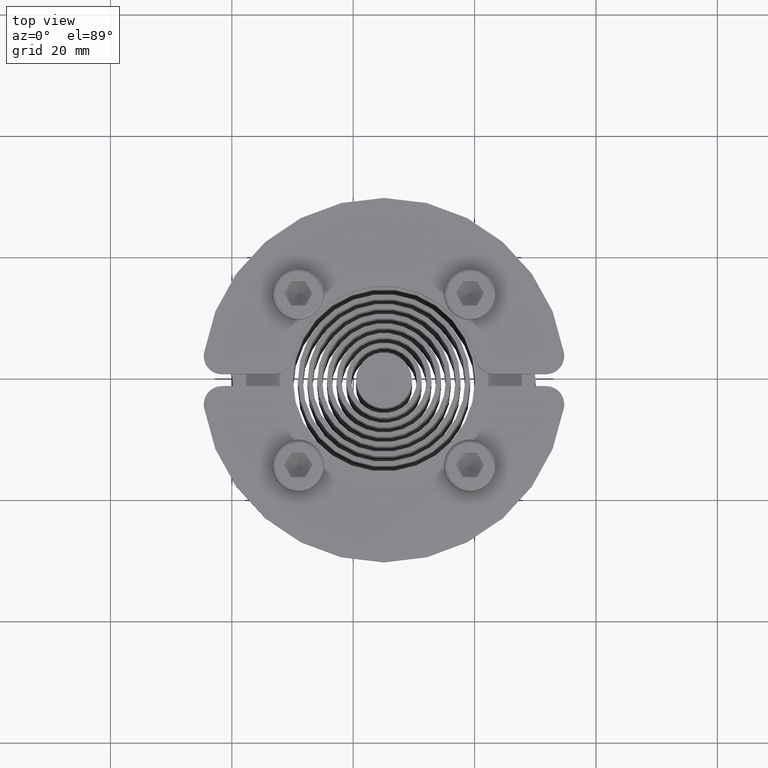
[diagram: clean part render]
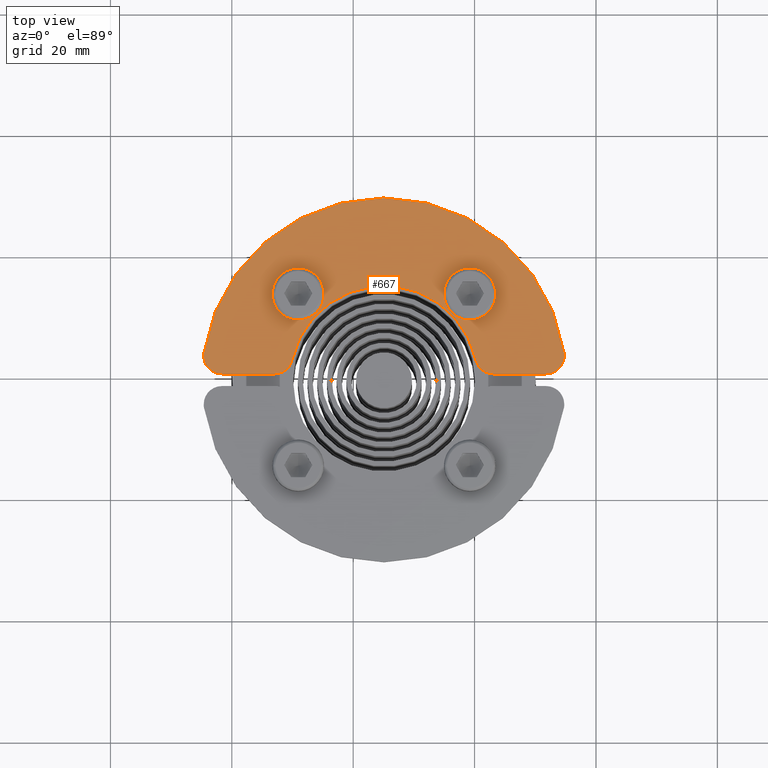
[diagram: same view with one face highlighted and labeled with its STEP entity id]
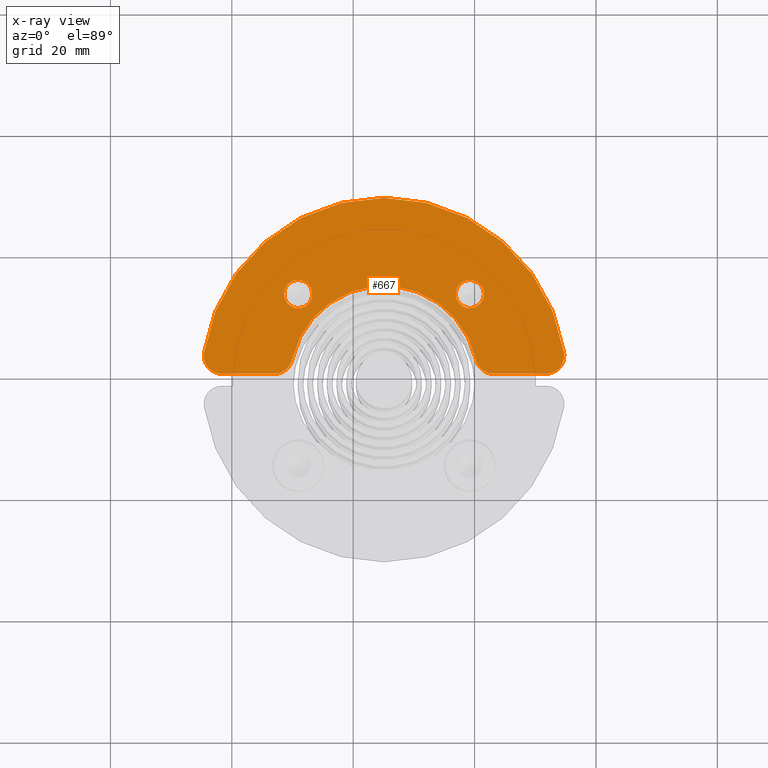
[diagram: x-ray of the same camera — body ghosted, the highlighted face saturated]
A machine part, top view. The second image highlights one B-rep face of the part: STEP entity #667.
The next image is the same camera in x-ray: the body ghosted, the highlighted face saturated — about 0% of this face is hidden behind the body in this view.
In plain terms, the highlighted planar face has unit normal (0, 0, -1).
Its self-contained STEP definition (entity closure, byte-faithful):
#163=CARTESIAN_POINT('',(16.451535623731047,-1.357864376269390,-1.250000000000000));
#164=VERTEX_POINT('',#163);
#173=CARTESIAN_POINT('',(11.832735623731065,-1.357864376269390,-1.250000000000000));
#174=VERTEX_POINT('',#173);
#175=CARTESIAN_POINT('',(14.142135623731065,-1.357864376269390,-1.250000000000000));
#176=DIRECTION('',(0.0,0.0,-1.0));
#177=DIRECTION('',(1.0,0.0,0.0));
#178=AXIS2_PLACEMENT_3D('',#175,#176,#177);
#179=CIRCLE('',#178,2.309400000000000);
#180=EDGE_CURVE('',#164,#174,#179,.T.);
#205=CARTESIAN_POINT('',(-11.832735623731082,-1.357864376269617,-1.250000000000000));
#206=VERTEX_POINT('',#205);
#215=CARTESIAN_POINT('',(-16.451535623731065,-1.357864376269617,-1.250000000000000));
#216=VERTEX_POINT('',#215);
#217=CARTESIAN_POINT('',(-14.142135623731065,-1.357864376269617,-1.250000000000000));
#218=DIRECTION('',(0.0,0.0,-1.0));
#219=DIRECTION('',(1.0,0.0,0.0));
#220=AXIS2_PLACEMENT_3D('',#217,#218,#219);
#221=CIRCLE('',#220,2.309400000000000);
#222=EDGE_CURVE('',#206,#216,#221,.T.);
#249=CARTESIAN_POINT('',(-29.702059845636541,-11.500000000000455,-1.250000000000000));
#250=VERTEX_POINT('',#249);
#266=CARTESIAN_POINT('',(-29.668955384041624,-11.055555555555429,-1.250000000000000));
#267=VERTEX_POINT('',#266);
#274=CARTESIAN_POINT('',(-26.702059845636541,-11.500000000000455,-1.250000000000000));
#275=DIRECTION('',(0.0,0.0,1.0));
#276=DIRECTION('',(1.0,0.0,0.0));
#277=AXIS2_PLACEMENT_3D('',#274,#275,#276);
#278=CIRCLE('',#277,3.0);
#279=EDGE_CURVE('',#267,#250,#278,.T.);
#289=CARTESIAN_POINT('',(29.702059845636541,-11.500000000000455,-1.250000000000000));
#290=VERTEX_POINT('',#289);
#299=CARTESIAN_POINT('',(29.668955384041624,-11.055555555555429,-1.250000000000000));
#300=VERTEX_POINT('',#299);
#301=CARTESIAN_POINT('',(26.702059845636541,-11.500000000000455,-1.250000000000000));
#302=DIRECTION('',(0.0,0.0,1.0));
#303=DIRECTION('',(1.0,0.0,0.0));
#304=AXIS2_PLACEMENT_3D('',#301,#302,#303);
#305=CIRCLE('',#304,3.0);
#306=EDGE_CURVE('',#290,#300,#305,.T.);
#341=CARTESIAN_POINT('',(26.702059845636541,-14.500000000000455,-1.250000000000000));
#342=VERTEX_POINT('',#341);
#349=CARTESIAN_POINT('',(26.702059845636541,-11.500000000000455,-1.250000000000000));
#350=DIRECTION('',(0.0,0.0,1.0));
#351=DIRECTION('',(1.0,0.0,0.0));
#352=AXIS2_PLACEMENT_3D('',#349,#350,#351);
#353=CIRCLE('',#352,3.0);
#354=EDGE_CURVE('',#342,#290,#353,.T.);
#372=CARTESIAN_POINT('',(18.062391868187660,-14.500000000000455,-1.250000000000000));
#373=VERTEX_POINT('',#372);
#380=CARTESIAN_POINT('',(18.062391868187660,-14.500000000000455,-1.250000000000000));
#381=DIRECTION('',(1.0,0.0,0.0));
#382=VECTOR('',#381,8.639667977448880);
#383=LINE('',#380,#382);
#384=EDGE_CURVE('',#373,#342,#383,.T.);
#404=CARTESIAN_POINT('',(15.133355349022622,-12.148648648648759,-1.250000000000000));
#405=VERTEX_POINT('',#404);
#412=CARTESIAN_POINT('',(18.062391868187660,-11.500000000000455,-1.250000000000000));
#413=DIRECTION('',(0.0,0.0,1.0));
#414=DIRECTION('',(1.0,0.0,0.0));
#415=AXIS2_PLACEMENT_3D('',#412,#413,#414);
#416=CIRCLE('',#415,3.0);
#417=EDGE_CURVE('',#405,#373,#416,.T.);
#437=CARTESIAN_POINT('',(-15.133355349021485,-12.148648648649214,-1.250000000000000));
#438=VERTEX_POINT('',#437);
#445=CARTESIAN_POINT('',(0.0,-15.500000000000455,-1.250000000000000));
#446=DIRECTION('',(0.0,0.0,-1.0));
#447=DIRECTION('',(1.0,0.0,0.0));
#448=AXIS2_PLACEMENT_3D('',#445,#446,#447);
#449=CIRCLE('',#448,15.500000000000000);
#450=EDGE_CURVE('',#438,#405,#449,.T.);
#470=CARTESIAN_POINT('',(-18.062391868187206,-14.500000000000455,-1.250000000000000));
#471=VERTEX_POINT('',#470);
#478=CARTESIAN_POINT('',(-18.062391868187206,-11.500000000000455,-1.250000000000000));
#479=DIRECTION('',(0.0,0.0,1.0));
#480=DIRECTION('',(1.0,0.0,0.0));
#481=AXIS2_PLACEMENT_3D('',#478,#479,#480);
#482=CIRCLE('',#481,3.0);
#483=EDGE_CURVE('',#471,#438,#482,.T.);
#502=CARTESIAN_POINT('',(-26.702059845636541,-14.500000000000455,-1.250000000000000));
#503=VERTEX_POINT('',#502);
#510=CARTESIAN_POINT('',(-26.702059845636541,-14.500000000000455,-1.250000000000000));
#511=DIRECTION('',(1.0,0.0,0.0));
#512=VECTOR('',#511,8.639667977449335);
#513=LINE('',#510,#512);
#514=EDGE_CURVE('',#503,#471,#513,.T.);
#526=CARTESIAN_POINT('',(-26.702059845636541,-11.500000000000455,-1.250000000000000));
#527=DIRECTION('',(0.0,0.0,1.0));
#528=DIRECTION('',(1.0,0.0,0.0));
#529=AXIS2_PLACEMENT_3D('',#526,#527,#528);
#530=CIRCLE('',#529,3.0);
#531=EDGE_CURVE('',#250,#503,#530,.T.);
#557=CARTESIAN_POINT('',(0.0,-15.499999999999773,-1.250000000000000));
#558=DIRECTION('',(0.0,0.0,1.0));
#559=DIRECTION('',(1.0,0.0,0.0));
#560=AXIS2_PLACEMENT_3D('',#557,#558,#559);
#561=CIRCLE('',#560,30.000000000000071);
#562=EDGE_CURVE('',#300,#267,#561,.T.);
#582=CARTESIAN_POINT('',(-14.142135623731065,-1.357864376269617,-1.250000000000000));
#583=DIRECTION('',(0.0,0.0,-1.0));
#584=DIRECTION('',(1.0,0.0,0.0));
#585=AXIS2_PLACEMENT_3D('',#582,#583,#584);
#586=CIRCLE('',#585,2.309400000000000);
#587=EDGE_CURVE('',#216,#206,#586,.T.);
#606=CARTESIAN_POINT('',(14.142135623731065,-1.357864376269390,-1.250000000000000));
#607=DIRECTION('',(0.0,0.0,-1.0));
#608=DIRECTION('',(1.0,0.0,0.0));
#609=AXIS2_PLACEMENT_3D('',#606,#607,#608);
#610=CIRCLE('',#609,2.309400000000000);
#611=EDGE_CURVE('',#174,#164,#610,.T.);
#642=CARTESIAN_POINT('',(0.0,-2.400749391979389,-1.250000000000000));
#643=DIRECTION('',(0.0,0.0,1.0));
#644=DIRECTION('',(1.0,0.0,0.0));
#645=AXIS2_PLACEMENT_3D('',#642,#643,#644);
#646=PLANE('',#645);
#647=ORIENTED_EDGE('',*,*,#562,.F.);
#648=ORIENTED_EDGE('',*,*,#306,.F.);
#649=ORIENTED_EDGE('',*,*,#354,.F.);
#650=ORIENTED_EDGE('',*,*,#384,.F.);
#651=ORIENTED_EDGE('',*,*,#417,.F.);
#652=ORIENTED_EDGE('',*,*,#450,.F.);
#653=ORIENTED_EDGE('',*,*,#483,.F.);
#654=ORIENTED_EDGE('',*,*,#514,.F.);
#655=ORIENTED_EDGE('',*,*,#531,.F.);
#656=ORIENTED_EDGE('',*,*,#279,.F.);
#657=EDGE_LOOP('',(#647,#648,#649,#650,#651,#652,#653,#654,#655,#656));
#658=FACE_OUTER_BOUND('',#657,.T.);
#659=ORIENTED_EDGE('',*,*,#180,.F.);
#660=ORIENTED_EDGE('',*,*,#611,.F.);
#661=EDGE_LOOP('',(#659,#660));
#662=FACE_BOUND('',#661,.T.);
#663=ORIENTED_EDGE('',*,*,#222,.F.);
#664=ORIENTED_EDGE('',*,*,#587,.F.);
#665=EDGE_LOOP('',(#663,#664));
#666=FACE_BOUND('',#665,.T.);
#667=ADVANCED_FACE('',(#658,#662,#666),#646,.F.);